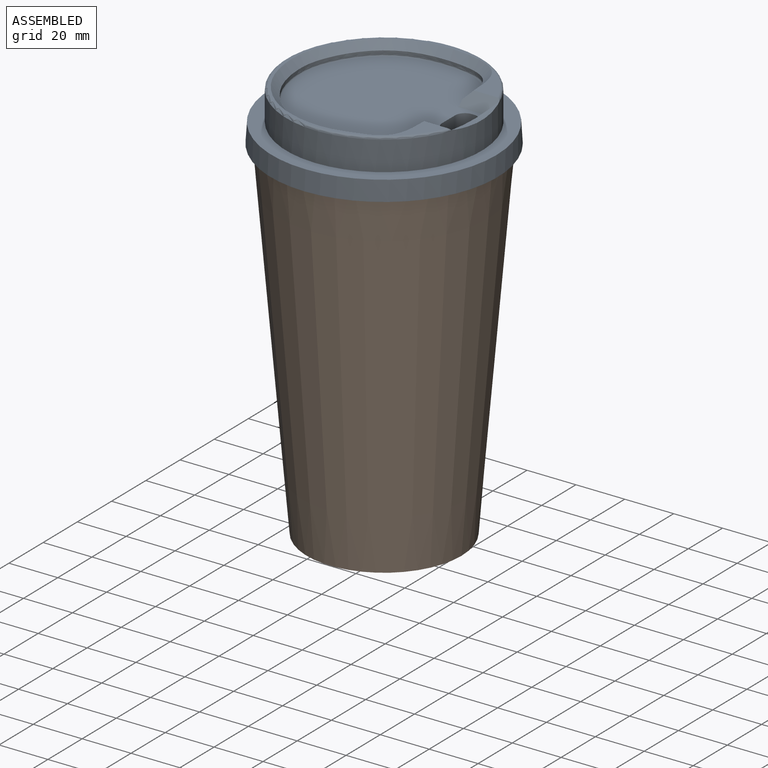
[diagram: assembled view]
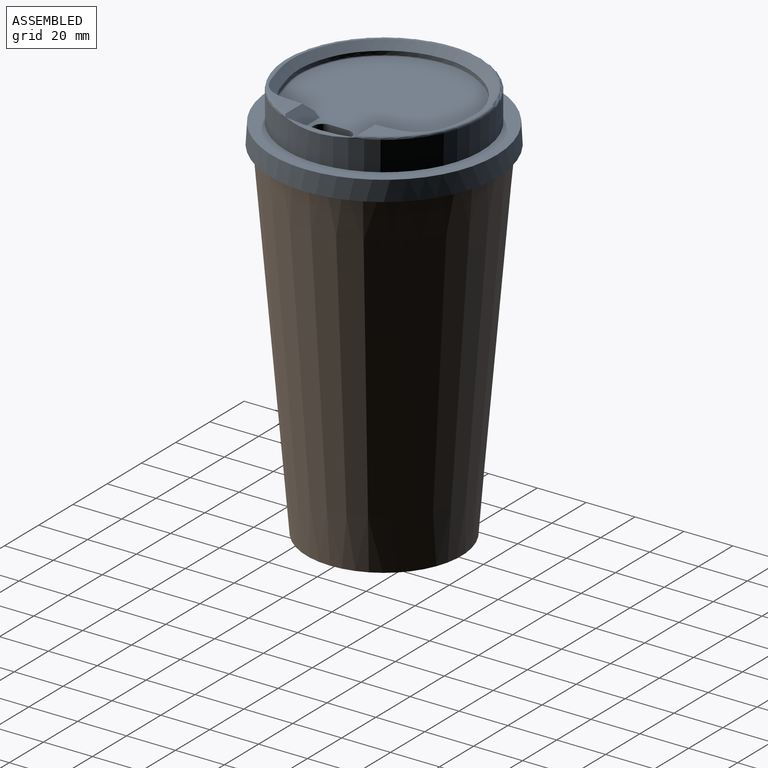
[diagram: assembled view, second angle]
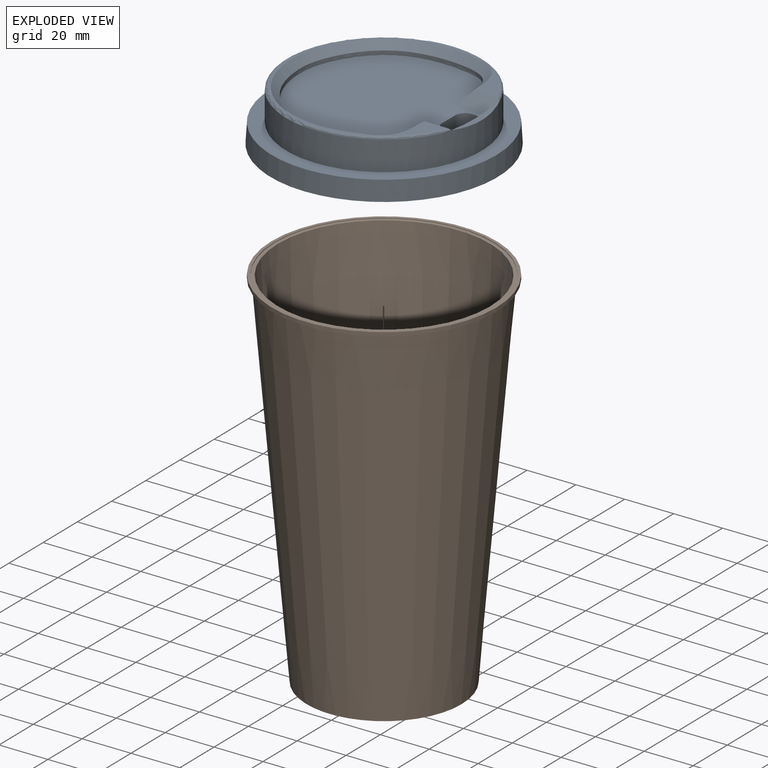
[diagram: exploded view]
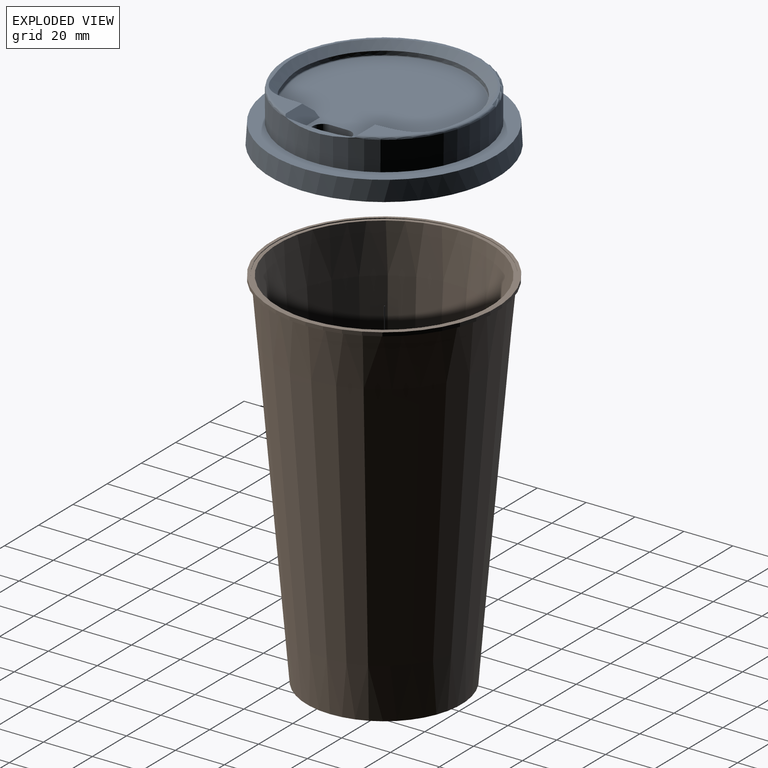
[diagram: exploded view, second angle]
ASSEMBLY  parts=2 mates=2
PART A: 49 faces, bbox 96x24x96 mm
  f0: plane 18.6x12mm, normal (0,1,0), area 70.6mm2, adj f2,f11,f12,f13,f16,f17,f18,f19
  f1: plane 79.36x76.44mm, normal (0,-1,0), area 358.1mm2, adj f14,f20,f21,f22
  f2: plane 16x7.6mm, normal (0,0,1), area 121.6mm2, adj f0,f10,f16,f17
  f3: plane 0.48x0.48mm, normal (0,0,-1), area 0.1mm2, adj f9,f21,f24
  f4: plane 93x93mm, normal (0,1,0), area 432mm2, adj f6,f33
  f5: plane 92x92mm, normal (0,-1,0), area 1621.1mm2, adj f6,f7
  f6: cone r=46.5mm half-angle=3.6deg, axis (0,1,0), area 2329.3mm2, adj f4,f5
  f7: cylinder r=40mm len=80mm, axis (0,1,0), area 3015.9mm2, adj f5,f14,f23
  f8: plane 0.66x0.66mm, normal (0,0,-1), area 0.1mm2, adj f9,f22,f25
  f9: extruded ~69.58x58.74mm, area 285.2mm2, adj f3,f8,f20,f21,f22,f24,f25
  f10: plane 71.92x68.62mm, normal (0,-1,0), area 3483.1mm2, adj f2,f11,f12,f13,f15,f16,f17,f18
  f11: plane 16x1mm, normal (1,0,0), area 16mm2, adj f0,f10,f16,f19
  f12: plane 16x1mm, normal (-1,0,0), area 16mm2, adj f0,f10,f17,f18
  f13: plane 16x7.6mm, normal (0,0,-1), area 121.6mm2, adj f0,f10,f18,f19
  f14: torus R=39mm, axis (0,-1,0), area 345.5mm2, adj f1,f7,f21,f22,f23
  f15: plane 28.15x4.28mm, normal (0,0,-1), area 83.4mm2, adj f10,f21,f22,f23
  f16: cylinder r=4mm len=16mm, axis (0,1,0), area 100.5mm2, adj f0,f2,f10,f11
  f17: cylinder r=4mm len=16mm, axis (0,-1,0), area 100.5mm2, adj f0,f2,f10,f12
  f18: cylinder r=4mm len=16mm, axis (0,1,0), area 100.5mm2, adj f0,f10,f12,f13
  f19: cylinder r=4mm len=16mm, axis (0,-1,0), area 100.5mm2, adj f0,f10,f11,f13
  f20: bspline ~75.75x64.83mm, area 828.6mm2, adj f1,f9,f21,f22
  f21: plane 14.32x5.18mm, normal (-0.71,-0.71,0), area 90mm2, adj f1,f3,f9,f10,f14,f15,f20,f24
  f22: plane 14.26x5.18mm, normal (0.71,-0.71,0), area 90.9mm2, adj f1,f8,f9,f10,f14,f15,f20,f25
  f23: cylinder r=99.86mm len=28.15mm, axis (0,0,-1), area 49.5mm2, adj f7,f14,f15
  f24: bspline ~58.71x33.84mm, area 74.3mm2, adj f3,f9,f10,f21,f25
  f25: bspline ~58.94x35.81mm, area 75.8mm2, adj f8,f9,f10,f22,f24
  f26: plane 17.78x1.64mm, normal (0,1,0), area 3.2mm2, adj f34,f44
  f27: plane 4.77x2.5mm, normal (0,1,0), area 0.1mm2, adj f34,f44
  f28: plane 6.16x1.5mm, normal (0,1,0), area 0.2mm2, adj f34,f44
  f29: plane 14.07x10.49mm, normal (0,1,0), area 57.8mm2, adj f34,f44,f45
  f30: plane 15.23x11.92mm, normal (0,1,0), area 66.9mm2, adj f34,f44,f46
  f31: plane 14.5x7.6mm, normal (0,0,-1), area 110.2mm2, adj f0,f36,f40,f41
  f32: plane 89.18x89.18mm, normal (0,1,0), area 1589.9mm2, adj f33,f34
  f33: cone r=45mm half-angle=3.6deg, axis (0,1,0), area 1833mm2, adj f4,f32
  f34: cylinder r=38.5mm len=77mm, axis (0,1,0), area 3012.6mm2, adj f26,f27,f28,f29,f30,f32,f36,f44
  f35: extruded ~72.61x61.72mm, area 169.1mm2, adj f44,f45,f46,f47,f48
  f36: plane 73.02x68.62mm, normal (0,1,0), area 3442.3mm2, adj f31,f34,f37,f38,f39,f40,f41,f42
  f37: plane 14.5x1mm, normal (-1,0,0), area 14.5mm2, adj f0,f36,f40,f43
  f38: plane 14.5x1mm, normal (1,0,0), area 14.5mm2, adj f0,f36,f41,f42
  f39: plane 14.5x7.6mm, normal (0,0,1), area 110.2mm2, adj f0,f36,f42,f43
  f40: cylinder r=5.5mm len=14.5mm, axis (0,1,0), area 125.3mm2, adj f0,f31,f36,f37
  f41: cylinder r=5.5mm len=14.5mm, axis (0,-1,0), area 125.3mm2, adj f0,f31,f36,f38
  f42: cylinder r=5.5mm len=14.5mm, axis (0,1,0), area 125.3mm2, adj f0,f36,f38,f39
  f43: cylinder r=5.5mm len=14.5mm, axis (0,-1,0), area 125.3mm2, adj f0,f36,f37,f39
  f44: offset ~78.75x67.83mm, area 598.7mm2, adj f26,f27,f28,f29,f30,f34,f35,f45
  f45: plane 14.59x5.77mm, normal (0.71,0.71,0), area 75.9mm2, adj f29,f34,f35,f36,f44,f47
  f46: plane 14.65x5.84mm, normal (-0.71,0.71,0), area 77.1mm2, adj f30,f34,f35,f36,f44,f48
  f47: bspline ~61.84x35.35mm, area 302.2mm2, adj f35,f36,f45,f48
  f48: bspline ~61.83x37.39mm, area 308.6mm2, adj f35,f36,f46,f47
PART B: 12 faces, bbox 92x92x150.5 mm
  f0: cone r=31.7mm half-angle=4.9deg, axis (0,0,1), area 35808.8mm2, adj f1,f6
  f1: plane 63.4x63.4mm, normal (0,0,-1), area 234.5mm2, adj f0,f2
  f2: cylinder r=30.5mm len=61mm, axis (0,0,-1), area 2977.1mm2, adj f1,f3
  f3: plane 61x61mm, normal (0,0,-1), area 2922.5mm2, adj f2
  f4: plane 92x92mm, normal (0,0,1), area 342.3mm2, adj f5,f10
  f5: cylinder r=46mm len=92mm, axis (0,0,-1), area 433.5mm2, adj f4,f6
  f6: plane 92x92mm, normal (0,0,-1), area 426.5mm2, adj f0,f5
  f7: cone r=30.5mm half-angle=4.9deg, axis (0,0,1), area 32254.7mm2, adj f8,f11
  f8: cylinder r=31.7mm len=63.4mm, axis (0,0,-1), area 540.1mm2, adj f7,f9
  f9: plane 63.4x63.4mm, normal (0,0,1), area 3157mm2, adj f8
  f10: cylinder r=44.8mm len=89.6mm, axis (0,0,-1), area 84.4mm2, adj f4,f11
  f11: plane 89.6x89.6mm, normal (0,0,1), area 388.3mm2, adj f7,f10
PLACE A rot(axis=(-0.58,0.58,-0.58),120deg) t=(-39.34,9.85,117.61)mm
PLACE B t=(-39.34,9.85,-10.89)mm fixed
MATE fastened A.f6 <-> B.f0  axis (0,0,-1) through (-39.34,9.85,124.11)mm
MATE cylindrical A.f6 <-> B.f0  axis (0,0,-1) through (-39.34,9.85,120.86)mm
